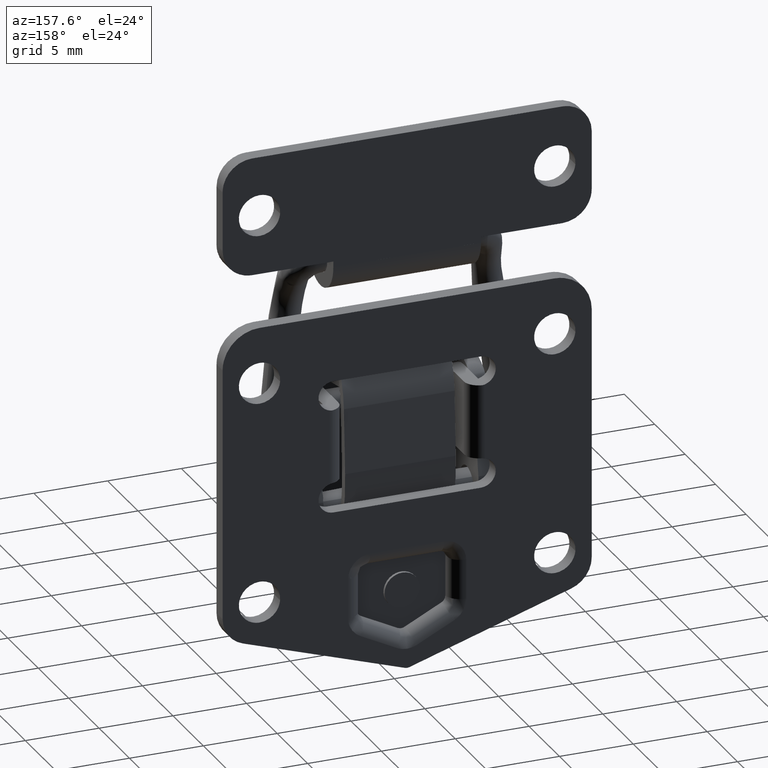
[diagram: clean part render]
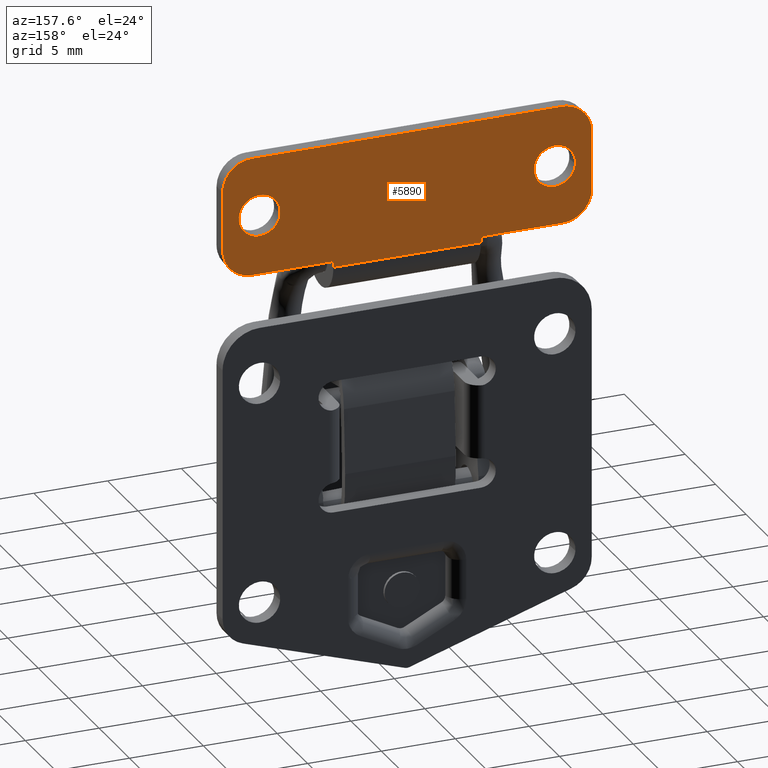
[diagram: same view with one face highlighted and labeled with its STEP entity id]
A machine part, auxiliary view. The second image highlights one B-rep face of the part: STEP entity #5890.
In plain terms, the highlighted face is a freeform B-spline surface patch.
Its self-contained STEP definition (entity closure, byte-faithful):
#4761=CARTESIAN_POINT('',(2.100000000000100,-10.0,5.900000000000000));
#4762=VERTEX_POINT('',#4761);
#4763=CARTESIAN_POINT('',(2.100000000000100,-11.395684267223020,4.609842734061724));
#4764=VERTEX_POINT('',#4763);
#4765=CARTESIAN_POINT('',(2.100000000000100,-10.0,5.900000000000000));
#4766=CARTESIAN_POINT('',(2.100000000000100,-11.294146688241980,5.899999999999999));
#4767=CARTESIAN_POINT('',(2.100000000000101,-11.395684267223016,4.609842734061724));
#4775=(BOUNDED_CURVE()B_SPLINE_CURVE(2,(#4765,#4766,#4767),.UNSPECIFIED.,.F.,.U.)B_SPLINE_CURVE_WITH_KNOTS((3,3),(0.0,0.236331300622268),.UNSPECIFIED.)CURVE()GEOMETRIC_REPRESENTATION_ITEM()RATIONAL_B_SPLINE_CURVE((1.0,0.723120658617497,0.969723356149905))REPRESENTATION_ITEM(''));
#4776=EDGE_CURVE('',#4762,#4764,#4775,.T.);
#4817=CARTESIAN_POINT('',(2.100000000000100,-8.604315732776986,4.390157265938276));
#4818=VERTEX_POINT('',#4817);
#4824=CARTESIAN_POINT('',(2.100000000000101,-8.604315732776986,4.390157265938276));
#4825=CARTESIAN_POINT('',(2.100000000000100,-8.600000000000001,4.444993850146324));
#4826=CARTESIAN_POINT('',(2.100000000000100,-8.600000000000000,4.500000000000000));
#4827=CARTESIAN_POINT('',(2.100000000000100,-8.600000000000000,5.899999999999999));
#4828=CARTESIAN_POINT('',(2.100000000000100,-10.0,5.900000000000000));
#4836=(BOUNDED_CURVE()B_SPLINE_CURVE(2,(#4824,#4825,#4826,#4827,#4828),.UNSPECIFIED.,.F.,.U.)B_SPLINE_CURVE_WITH_KNOTS((3,2,3),(0.736331300622268,0.750000000000000,1.0),.UNSPECIFIED.)CURVE()GEOMETRIC_REPRESENTATION_ITEM()RATIONAL_B_SPLINE_CURVE((0.969723356149904,0.983986122569050,1.0,0.707106781186547,1.0))REPRESENTATION_ITEM(''));
#4837=EDGE_CURVE('',#4818,#4762,#4836,.T.);
#4860=CARTESIAN_POINT('',(2.100000000000100,-10.0,3.100000000000000));
#4861=VERTEX_POINT('',#4860);
#4862=CARTESIAN_POINT('',(2.100000000000101,-11.395684267223016,4.609842734061724));
#4863=CARTESIAN_POINT('',(2.100000000000100,-11.399999999999997,4.555006149853676));
#4864=CARTESIAN_POINT('',(2.100000000000100,-11.400000000000000,4.500000000000000));
#4865=CARTESIAN_POINT('',(2.100000000000100,-11.399999999999999,3.100000000000000));
#4866=CARTESIAN_POINT('',(2.100000000000100,-10.0,3.100000000000000));
#4874=(BOUNDED_CURVE()B_SPLINE_CURVE(2,(#4862,#4863,#4864,#4865,#4866),.UNSPECIFIED.,.F.,.U.)B_SPLINE_CURVE_WITH_KNOTS((3,2,3),(0.236331300622268,0.250000000000000,0.500000000000000),.UNSPECIFIED.)CURVE()GEOMETRIC_REPRESENTATION_ITEM()RATIONAL_B_SPLINE_CURVE((0.969723356149905,0.983986122569050,1.0,0.707106781186547,1.0))REPRESENTATION_ITEM(''));
#4875=EDGE_CURVE('',#4764,#4861,#4874,.T.);
#4877=CARTESIAN_POINT('',(2.100000000000100,-10.0,3.100000000000000));
#4878=CARTESIAN_POINT('',(2.100000000000100,-8.705853311758016,3.100000000000000));
#4879=CARTESIAN_POINT('',(2.100000000000100,-8.604315732776986,4.390157265938276));
#4887=(BOUNDED_CURVE()B_SPLINE_CURVE(2,(#4877,#4878,#4879),.UNSPECIFIED.,.F.,.U.)B_SPLINE_CURVE_WITH_KNOTS((3,3),(0.500000000000000,0.736331300622268),.UNSPECIFIED.)CURVE()GEOMETRIC_REPRESENTATION_ITEM()RATIONAL_B_SPLINE_CURVE((1.0,0.723120658617497,0.969723356149905))REPRESENTATION_ITEM(''));
#4888=EDGE_CURVE('',#4861,#4818,#4887,.T.);
#4943=CARTESIAN_POINT('',(2.100000000000100,10.0,5.900000000000000));
#4944=VERTEX_POINT('',#4943);
#4945=CARTESIAN_POINT('',(2.100000000000100,8.604315732776986,4.609842734061724));
#4946=VERTEX_POINT('',#4945);
#4947=CARTESIAN_POINT('',(2.100000000000100,10.0,5.900000000000000));
#4948=CARTESIAN_POINT('',(2.100000000000100,8.705853311758016,5.900000000000000));
#4949=CARTESIAN_POINT('',(2.100000000000101,8.604315732776986,4.609842734061724));
#4957=(BOUNDED_CURVE()B_SPLINE_CURVE(2,(#4947,#4948,#4949),.UNSPECIFIED.,.F.,.U.)B_SPLINE_CURVE_WITH_KNOTS((3,3),(0.0,0.236331300622268),.UNSPECIFIED.)CURVE()GEOMETRIC_REPRESENTATION_ITEM()RATIONAL_B_SPLINE_CURVE((1.0,0.723120658617497,0.969723356149905))REPRESENTATION_ITEM(''));
#4958=EDGE_CURVE('',#4944,#4946,#4957,.T.);
#4999=CARTESIAN_POINT('',(2.100000000000100,11.395684267223020,4.390157265938276));
#5000=VERTEX_POINT('',#4999);
#5006=CARTESIAN_POINT('',(2.100000000000101,11.395684267223011,4.390157265938276));
#5007=CARTESIAN_POINT('',(2.100000000000100,11.400000000000000,4.444993850146324));
#5008=CARTESIAN_POINT('',(2.100000000000100,11.400000000000000,4.500000000000000));
#5009=CARTESIAN_POINT('',(2.100000000000100,11.399999999999999,5.899999999999999));
#5010=CARTESIAN_POINT('',(2.100000000000100,10.0,5.900000000000000));
#5018=(BOUNDED_CURVE()B_SPLINE_CURVE(2,(#5006,#5007,#5008,#5009,#5010),.UNSPECIFIED.,.F.,.U.)B_SPLINE_CURVE_WITH_KNOTS((3,2,3),(0.736331300622268,0.750000000000000,1.0),.UNSPECIFIED.)CURVE()GEOMETRIC_REPRESENTATION_ITEM()RATIONAL_B_SPLINE_CURVE((0.969723356149904,0.983986122569050,1.0,0.707106781186547,1.0))REPRESENTATION_ITEM(''));
#5019=EDGE_CURVE('',#5000,#4944,#5018,.T.);
#5042=CARTESIAN_POINT('',(2.100000000000100,10.0,3.100000000000000));
#5043=VERTEX_POINT('',#5042);
#5044=CARTESIAN_POINT('',(2.100000000000100,8.604315732776986,4.609842734061724));
#5045=CARTESIAN_POINT('',(2.100000000000100,8.600000000000000,4.555006149853676));
#5046=CARTESIAN_POINT('',(2.100000000000100,8.600000000000000,4.500000000000000));
#5047=CARTESIAN_POINT('',(2.100000000000100,8.600000000000000,3.100000000000000));
#5048=CARTESIAN_POINT('',(2.100000000000100,10.0,3.100000000000000));
#5056=(BOUNDED_CURVE()B_SPLINE_CURVE(2,(#5044,#5045,#5046,#5047,#5048),.UNSPECIFIED.,.F.,.U.)B_SPLINE_CURVE_WITH_KNOTS((3,2,3),(0.236331300622268,0.250000000000000,0.500000000000000),.UNSPECIFIED.)CURVE()GEOMETRIC_REPRESENTATION_ITEM()RATIONAL_B_SPLINE_CURVE((0.969723356149904,0.983986122569050,1.0,0.707106781186547,1.0))REPRESENTATION_ITEM(''));
#5057=EDGE_CURVE('',#4946,#5043,#5056,.T.);
#5059=CARTESIAN_POINT('',(2.100000000000100,10.0,3.100000000000000));
#5060=CARTESIAN_POINT('',(2.100000000000100,11.294146688241982,3.100000000000000));
#5061=CARTESIAN_POINT('',(2.100000000000100,11.395684267223015,4.390157265938276));
#5069=(BOUNDED_CURVE()B_SPLINE_CURVE(2,(#5059,#5060,#5061),.UNSPECIFIED.,.F.,.U.)B_SPLINE_CURVE_WITH_KNOTS((3,3),(0.500000000000000,0.736331300622268),.UNSPECIFIED.)CURVE()GEOMETRIC_REPRESENTATION_ITEM()RATIONAL_B_SPLINE_CURVE((1.0,0.723120658617497,0.969723356149905))REPRESENTATION_ITEM(''));
#5070=EDGE_CURVE('',#5043,#5000,#5069,.T.);
#5121=CARTESIAN_POINT('',(2.100000000000110,-12.500000000000000,2.500000000000000));
#5122=VERTEX_POINT('',#5121);
#5123=CARTESIAN_POINT('',(2.100000000000110,-10.500000000000000,0.500000000000000));
#5124=VERTEX_POINT('',#5123);
#5125=CARTESIAN_POINT('',(2.100000000000100,-12.500000000000000,2.500000000000000));
#5126=CARTESIAN_POINT('',(2.100000000000101,-12.500000000000000,0.500000000000000));
#5127=CARTESIAN_POINT('',(2.100000000000100,-10.500000000000000,0.500000000000000));
#5135=(BOUNDED_CURVE()B_SPLINE_CURVE(2,(#5125,#5126,#5127),.UNSPECIFIED.,.F.,.U.)CURVE()GEOMETRIC_REPRESENTATION_ITEM()QUASI_UNIFORM_CURVE()RATIONAL_B_SPLINE_CURVE((1.0,0.707106781186548,1.0))REPRESENTATION_ITEM(''));
#5136=EDGE_CURVE('',#5122,#5124,#5135,.T.);
#5199=CARTESIAN_POINT('',(2.100000000000110,-12.500000000000000,6.500000000000000));
#5200=VERTEX_POINT('',#5199);
#5206=CARTESIAN_POINT('',(2.100000000000110,-10.500000000000000,8.500000000000000));
#5207=VERTEX_POINT('',#5206);
#5208=CARTESIAN_POINT('',(2.100000000000110,-10.500000000000000,8.500000000000000));
#5209=CARTESIAN_POINT('',(2.100000000000110,-12.500000000000000,8.500000000000002));
#5210=CARTESIAN_POINT('',(2.100000000000110,-12.500000000000000,6.500000000000000));
#5218=(BOUNDED_CURVE()B_SPLINE_CURVE(2,(#5208,#5209,#5210),.UNSPECIFIED.,.F.,.U.)CURVE()GEOMETRIC_REPRESENTATION_ITEM()QUASI_UNIFORM_CURVE()RATIONAL_B_SPLINE_CURVE((1.0,0.707106781186548,1.0))REPRESENTATION_ITEM(''));
#5219=EDGE_CURVE('',#5207,#5200,#5218,.T.);
#5260=CARTESIAN_POINT('',(2.100000000000110,10.500000000000000,8.500000000000000));
#5261=VERTEX_POINT('',#5260);
#5267=CARTESIAN_POINT('',(2.100000000000110,12.500000000000000,6.500000000000000));
#5268=VERTEX_POINT('',#5267);
#5269=CARTESIAN_POINT('',(2.100000000000110,12.500000000000000,6.500000000000000));
#5270=CARTESIAN_POINT('',(2.100000000000110,12.500000000000000,8.500000000000002));
#5271=CARTESIAN_POINT('',(2.100000000000110,10.500000000000000,8.500000000000000));
#5279=(BOUNDED_CURVE()B_SPLINE_CURVE(2,(#5269,#5270,#5271),.UNSPECIFIED.,.F.,.U.)CURVE()GEOMETRIC_REPRESENTATION_ITEM()QUASI_UNIFORM_CURVE()RATIONAL_B_SPLINE_CURVE((1.0,0.707106781186548,1.0))REPRESENTATION_ITEM(''));
#5280=EDGE_CURVE('',#5268,#5261,#5279,.T.);
#5304=CARTESIAN_POINT('',(2.100000000000110,10.500000000000000,0.500000000000000));
#5305=VERTEX_POINT('',#5304);
#5306=CARTESIAN_POINT('',(2.100000000000110,12.500000000000000,2.500000000000000));
#5307=VERTEX_POINT('',#5306);
#5308=CARTESIAN_POINT('',(2.100000000000110,10.500000000000000,0.500000000000000));
#5309=CARTESIAN_POINT('',(2.100000000000110,12.500000000000000,0.500000000000000));
#5310=CARTESIAN_POINT('',(2.100000000000110,12.500000000000000,2.500000000000000));
#5318=(BOUNDED_CURVE()B_SPLINE_CURVE(2,(#5308,#5309,#5310),.UNSPECIFIED.,.F.,.U.)CURVE()GEOMETRIC_REPRESENTATION_ITEM()QUASI_UNIFORM_CURVE()RATIONAL_B_SPLINE_CURVE((1.0,0.707106781186548,1.0))REPRESENTATION_ITEM(''));
#5319=EDGE_CURVE('',#5305,#5307,#5318,.T.);
#5490=CARTESIAN_POINT('',(2.100000000000100,4.999999999999941,0.500000000000000));
#5491=VERTEX_POINT('',#5490);
#5492=CARTESIAN_POINT('',(2.100000000000110,10.500000000000000,0.500000000000000));
#5493=CARTESIAN_POINT('',(2.100000000000100,4.999999999999941,0.500000000000000));
#5494=QUASI_UNIFORM_CURVE('',1,(#5492,#5493),.UNSPECIFIED.,.F.,.U.);
#5495=EDGE_CURVE('',#5305,#5491,#5494,.T.);
#5548=CARTESIAN_POINT('',(2.100000000000110,4.999999999999941,0.099999999999994));
#5549=VERTEX_POINT('',#5548);
#5550=CARTESIAN_POINT('',(2.100000000000100,4.999999999999941,0.500000000000000));
#5551=CARTESIAN_POINT('',(2.100000000000110,4.999999999999941,0.099999999999994));
#5552=QUASI_UNIFORM_CURVE('',1,(#5550,#5551),.UNSPECIFIED.,.F.,.U.);
#5553=EDGE_CURVE('',#5491,#5549,#5552,.T.);
#5585=CARTESIAN_POINT('',(2.100000000000100,-5.000000000000060,0.500000000000000));
#5586=VERTEX_POINT('',#5585);
#5587=CARTESIAN_POINT('',(2.100000000000100,-5.000000000000060,0.500000000000000));
#5588=CARTESIAN_POINT('',(2.100000000000110,-10.500000000000000,0.500000000000000));
#5589=QUASI_UNIFORM_CURVE('',1,(#5587,#5588),.UNSPECIFIED.,.F.,.U.);
#5590=EDGE_CURVE('',#5586,#5124,#5589,.T.);
#5645=CARTESIAN_POINT('',(2.100000000000110,-5.000000000000060,0.099999999999994));
#5646=VERTEX_POINT('',#5645);
#5652=CARTESIAN_POINT('',(2.100000000000110,-5.000000000000060,0.099999999999994));
#5653=CARTESIAN_POINT('',(2.100000000000100,-5.000000000000060,0.500000000000000));
#5654=QUASI_UNIFORM_CURVE('',1,(#5652,#5653),.UNSPECIFIED.,.F.,.U.);
#5655=EDGE_CURVE('',#5646,#5586,#5654,.T.);
#5702=CARTESIAN_POINT('',(2.100000000000110,4.999999999999941,0.099999999999994));
#5703=CARTESIAN_POINT('',(2.100000000000110,-5.000000000000060,0.099999999999994));
#5704=QUASI_UNIFORM_CURVE('',1,(#5702,#5703),.UNSPECIFIED.,.F.,.U.);
#5705=EDGE_CURVE('',#5549,#5646,#5704,.T.);
#5723=CARTESIAN_POINT('',(2.100000000000110,10.500000000000000,8.500000000000000));
#5724=CARTESIAN_POINT('',(2.100000000000110,-10.500000000000000,8.500000000000000));
#5725=QUASI_UNIFORM_CURVE('',1,(#5723,#5724),.UNSPECIFIED.,.F.,.U.);
#5726=EDGE_CURVE('',#5261,#5207,#5725,.T.);
#5776=CARTESIAN_POINT('',(2.100000000000110,-12.500000000000000,6.500000000000000));
#5777=CARTESIAN_POINT('',(2.100000000000110,-12.500000000000000,2.500000000000000));
#5778=QUASI_UNIFORM_CURVE('',1,(#5776,#5777),.UNSPECIFIED.,.F.,.U.);
#5779=EDGE_CURVE('',#5200,#5122,#5778,.T.);
#5796=CARTESIAN_POINT('',(2.100000000000110,12.500000000000000,6.500000000000000));
#5797=CARTESIAN_POINT('',(2.100000000000110,12.500000000000000,2.500000000000000));
#5798=QUASI_UNIFORM_CURVE('',1,(#5796,#5797),.UNSPECIFIED.,.F.,.U.);
#5799=EDGE_CURVE('',#5268,#5307,#5798,.T.);
#5859=CARTESIAN_POINT('',(2.100000000000110,-13.748749951545150,-0.319579983719176));
#5860=CARTESIAN_POINT('',(2.100000000000110,-13.748749951545150,8.919580209024726));
#5861=CARTESIAN_POINT('',(2.100000000000110,13.748750622097401,-0.319579983719176));
#5862=CARTESIAN_POINT('',(2.100000000000110,13.748750622097401,8.919580209024726));
#5863=B_SPLINE_SURFACE_WITH_KNOTS('',1,1,((#5859,#5861),(#5860,#5862)),.UNSPECIFIED.,.F.,.F.,.U.,(2,2),(2,2),(0.0,9.239160192743903),(0.0,27.497500573642551),.UNSPECIFIED.);
#5864=ORIENTED_EDGE('',*,*,#5495,.F.);
#5865=ORIENTED_EDGE('',*,*,#5319,.T.);
#5866=ORIENTED_EDGE('',*,*,#5799,.F.);
#5867=ORIENTED_EDGE('',*,*,#5280,.T.);
#5868=ORIENTED_EDGE('',*,*,#5726,.T.);
#5869=ORIENTED_EDGE('',*,*,#5219,.T.);
#5870=ORIENTED_EDGE('',*,*,#5779,.T.);
#5871=ORIENTED_EDGE('',*,*,#5136,.T.);
#5872=ORIENTED_EDGE('',*,*,#5590,.F.);
#5873=ORIENTED_EDGE('',*,*,#5655,.F.);
#5874=ORIENTED_EDGE('',*,*,#5705,.F.);
#5875=ORIENTED_EDGE('',*,*,#5553,.F.);
#5876=EDGE_LOOP('',(#5864,#5865,#5866,#5867,#5868,#5869,#5870,#5871,#5872,#5873,#5874,#5875));
#5877=FACE_OUTER_BOUND('',#5876,.T.);
#5878=ORIENTED_EDGE('',*,*,#5070,.F.);
#5879=ORIENTED_EDGE('',*,*,#5057,.F.);
#5880=ORIENTED_EDGE('',*,*,#4958,.F.);
#5881=ORIENTED_EDGE('',*,*,#5019,.F.);
#5882=EDGE_LOOP('',(#5878,#5879,#5880,#5881));
#5883=FACE_BOUND('',#5882,.T.);
#5884=ORIENTED_EDGE('',*,*,#4888,.F.);
#5885=ORIENTED_EDGE('',*,*,#4875,.F.);
#5886=ORIENTED_EDGE('',*,*,#4776,.F.);
#5887=ORIENTED_EDGE('',*,*,#4837,.F.);
#5888=EDGE_LOOP('',(#5884,#5885,#5886,#5887));
#5889=FACE_BOUND('',#5888,.T.);
#5890=ADVANCED_FACE('',(#5877,#5883,#5889),#5863,.F.);